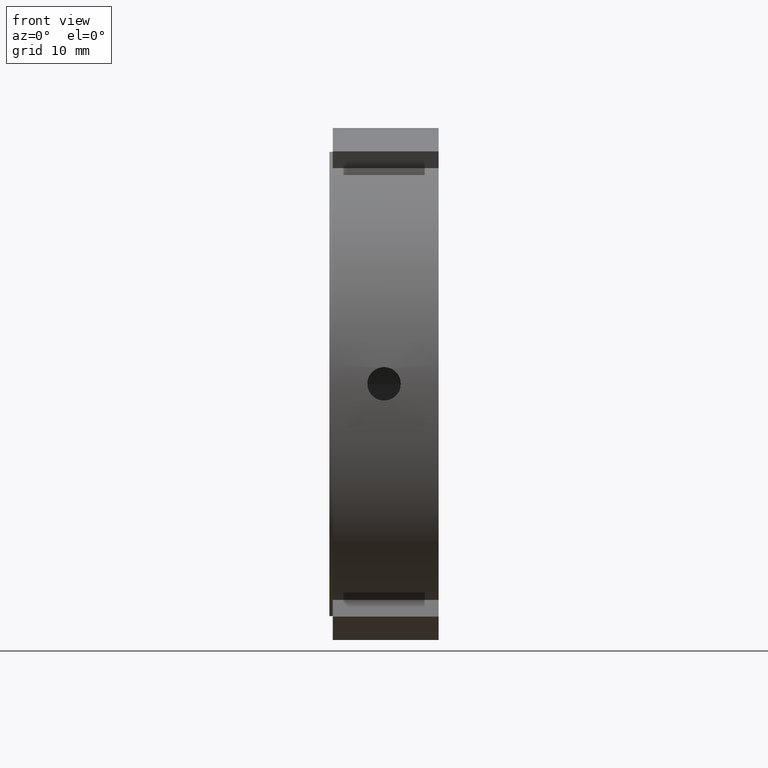
[diagram: clean part render]
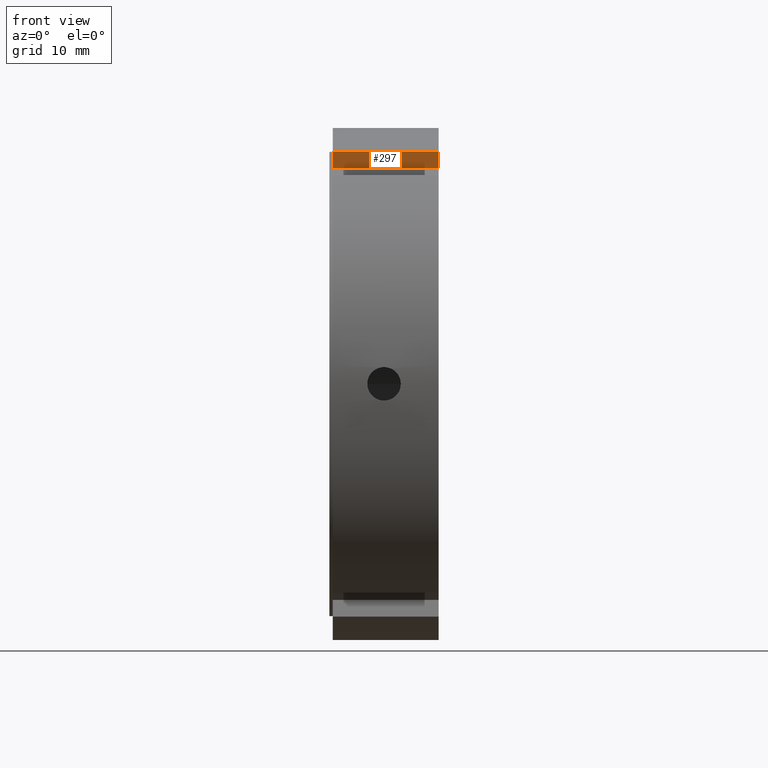
[diagram: same view with one face highlighted and labeled with its STEP entity id]
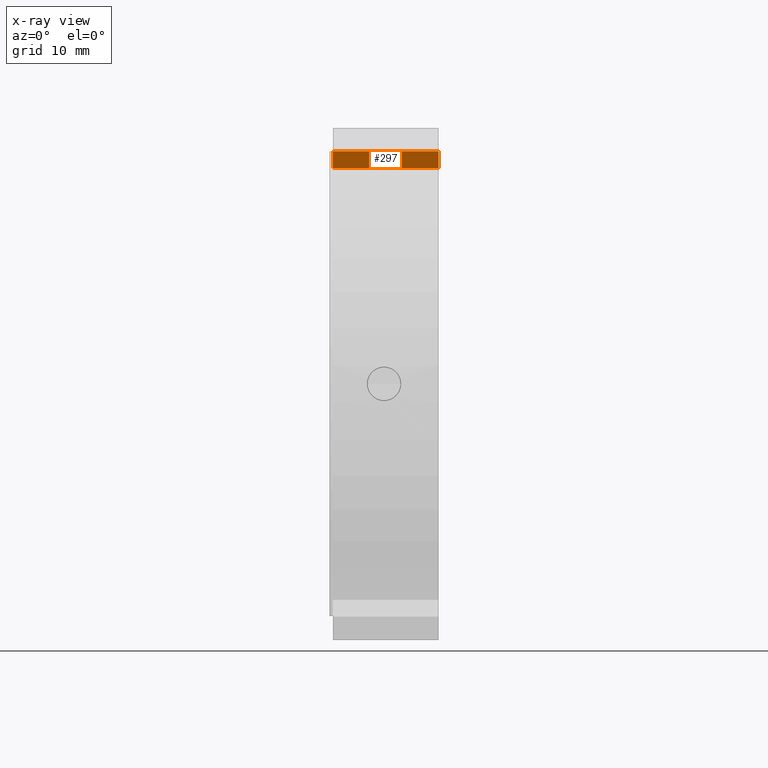
[diagram: x-ray of the same camera — body ghosted, the highlighted face saturated]
A machine part, front view. The second image highlights one B-rep face of the part: STEP entity #297.
The next image is the same camera in x-ray: the body ghosted, the highlighted face saturated — about 0% of this face is hidden behind the body in this view.
In plain terms, the highlighted planar face has unit normal (0, 0.866, 0.5).
Its self-contained STEP definition (entity closure, byte-faithful):
#258=CARTESIAN_POINT('',(15.999999999999995,-14.218911086754460,31.627876430563138));
#259=DIRECTION('',(0.0,0.866025403784439,0.500000000000000));
#260=DIRECTION('',(-1.0,0.0,0.0));
#261=AXIS2_PLACEMENT_3D('',#258,#259,#260);
#262=PLANE('',#261);
#263=CARTESIAN_POINT('',(0.499999999999989,-14.218911086754460,31.627876430563138));
#264=VERTEX_POINT('',#263);
#265=CARTESIAN_POINT('',(0.499999999999989,-15.637065789348926,34.084192428449484));
#266=VERTEX_POINT('',#265);
#267=CARTESIAN_POINT('',(0.499999999999990,-14.218911086754462,31.627876430563141));
#268=DIRECTION('',(0.0,-0.500000000000000,0.866025403784439));
#269=VECTOR('',#268,2.836309405188928);
#270=LINE('',#267,#269);
#271=EDGE_CURVE('',#264,#266,#270,.T.);
#272=ORIENTED_EDGE('',*,*,#271,.F.);
#273=CARTESIAN_POINT('',(15.999999999999995,-14.218911086754460,31.627876430563138));
#274=VERTEX_POINT('',#273);
#275=CARTESIAN_POINT('',(15.999999999999995,-14.218911086754460,31.627876430563138));
#276=DIRECTION('',(-1.0,0.0,0.0));
#277=VECTOR('',#276,15.500000000000005);
#278=LINE('',#275,#277);
#279=EDGE_CURVE('',#274,#264,#278,.T.);
#280=ORIENTED_EDGE('',*,*,#279,.F.);
#281=CARTESIAN_POINT('',(15.999999999999995,-15.637065789348927,34.084192428449491));
#282=VERTEX_POINT('',#281);
#283=CARTESIAN_POINT('',(15.999999999999995,-15.637065789348931,34.084192428449491));
#284=DIRECTION('',(0.0,0.500000000000001,-0.866025403784438));
#285=VECTOR('',#284,2.836309405188938);
#286=LINE('',#283,#285);
#287=EDGE_CURVE('',#282,#274,#286,.T.);
#288=ORIENTED_EDGE('',*,*,#287,.F.);
#289=CARTESIAN_POINT('',(0.499999999999989,-15.637065789348927,34.084192428449491));
#290=DIRECTION('',(1.0,0.0,0.0));
#291=VECTOR('',#290,15.500000000000005);
#292=LINE('',#289,#291);
#293=EDGE_CURVE('',#266,#282,#292,.T.);
#294=ORIENTED_EDGE('',*,*,#293,.F.);
#295=EDGE_LOOP('',(#272,#280,#288,#294));
#296=FACE_OUTER_BOUND('',#295,.T.);
#297=ADVANCED_FACE('',(#296),#262,.F.);